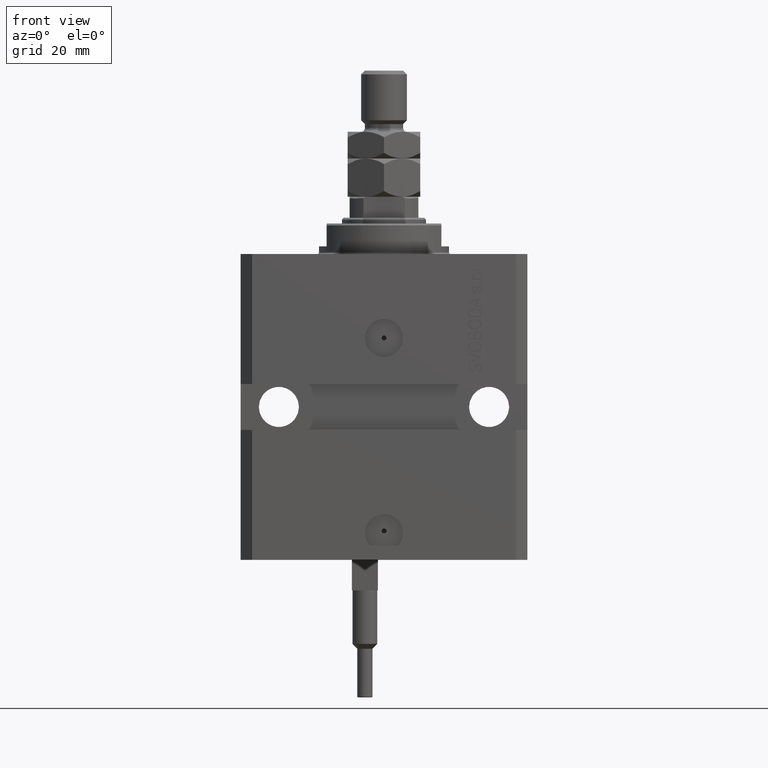
[diagram: clean part render]
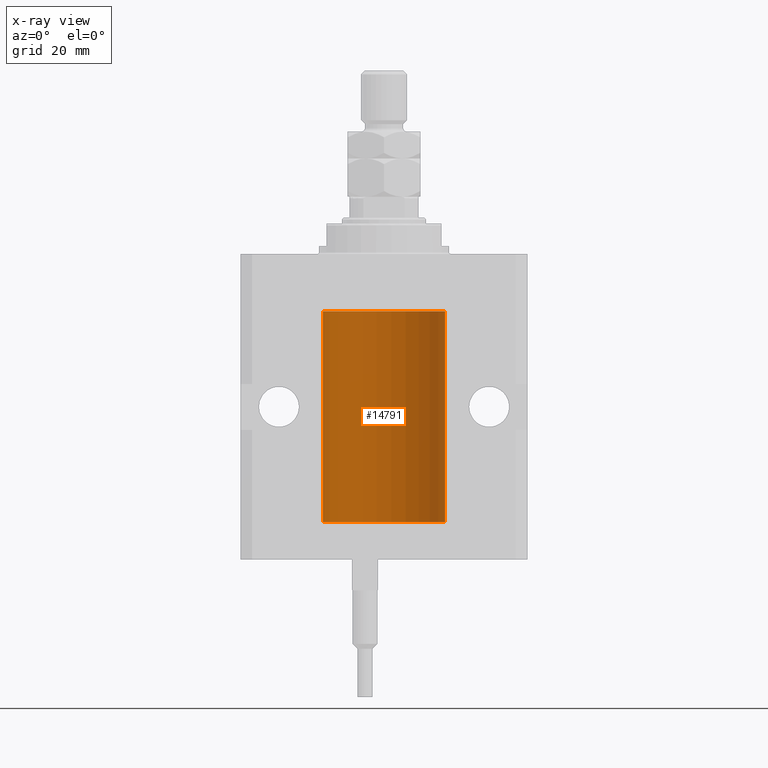
[diagram: x-ray — body ghosted, one internal face saturated and labeled with its STEP entity id]
A machine part, front view, then the same camera in x-ray: the body is ghosted and one INTERNAL B-rep face — a face not visible from any outside direction — is saturated and labeled: STEP entity #14791.
In plain terms, the highlighted cylindrical surface (partial cylindrical patch) has radius 16 mm, axis along (0, 0, 1).
Its self-contained STEP definition (entity closure, byte-faithful):
#267 = CARTESIAN_POINT ( 'NONE',  ( -15.99228023727724413, 0.5003781296993413674, -22.38347829554236057 ) ) ;
#402 = VECTOR ( 'NONE', #16337, 1000.000000000000000 ) ;
#584 = DIRECTION ( 'NONE',  ( -0.000000000000000000, -0.000000000000000000, 1.000000000000000000 ) ) ;
#1435 = CARTESIAN_POINT ( 'NONE',  ( -16.00000000000013145, 3.685127034031037939E-13, -22.62500000000341771 ) ) ;
#1508 = VERTEX_POINT ( 'NONE', #1435 ) ;
#1657 = EDGE_CURVE ( 'NONE', #27117, #44396, #21724, .T. ) ;
#3656 = EDGE_CURVE ( 'NONE', #16469, #8937, #36572, .T. ) ;
#3731 = EDGE_CURVE ( 'NONE', #27117, #37721, #8927, .T. ) ;
#4446 = CARTESIAN_POINT ( 'NONE',  ( -15.98779057735153586, 0.6249419637998054888, -67.83670145863507628 ) ) ;
#6251 = CARTESIAN_POINT ( 'NONE',  ( -16.00000000000000000, 1.959434878635765131E-15, -70.09999999999999432 ) ) ;
#7686 = CARTESIAN_POINT ( 'NONE',  ( -16.00000000000000000, -9.346608026143465119E-15, -67.37500000000000000 ) ) ;
#7812 = DIRECTION ( 'NONE',  ( 1.000000000000000000, 0.000000000000000000, 0.000000000000000000 ) ) ;
#8433 = CARTESIAN_POINT ( 'NONE',  ( -15.99548640841682712, 0.3843705577988820732, -67.50046628527007897 ) ) ;
#8627 = LINE ( 'NONE', #20070, #402 ) ;
#8628 = ORIENTED_EDGE ( 'NONE', *, *, #29279, .F. ) ;
#8798 = CYLINDRICAL_SURFACE ( 'NONE', #40331, 16.00000000000000000 ) ;
#8927 = LINE ( 'NONE', #16641, #31357 ) ;
#8937 = VERTEX_POINT ( 'NONE', #47743 ) ;
#9839 = DIRECTION ( 'NONE',  ( 0.000000000000000000, 0.000000000000000000, 1.000000000000000000 ) ) ;
#10026 = CARTESIAN_POINT ( 'NONE',  ( -16.00000000000000000, 1.643679961284177128E-16, -21.37499999999999645 ) ) ;
#10772 = CARTESIAN_POINT ( 'NONE',  ( -16.00000000000000000, 1.959434878635765131E-15, -70.09999999999999432 ) ) ;
#11268 = LINE ( 'NONE', #27424, #22191 ) ;
#12021 = EDGE_CURVE ( 'NONE', #25010, #1508, #37011, .T. ) ;
#13524 = CARTESIAN_POINT ( 'NONE',  ( -15.99548640841683067, 0.3843705577988847377, -21.50046628527008608 ) ) ;
#14791 = ADVANCED_FACE ( 'NONE', ( #26697 ), #8798, .F. ) ;
#15049 = CARTESIAN_POINT ( 'NONE',  ( -16.00000000000000000, -9.346608026143465119E-15, -67.37500000000000000 ) ) ;
#15897 = CARTESIAN_POINT ( 'NONE',  ( -15.99228023727723702, 0.5003781296993395911, -68.38347829554236057 ) ) ;
#16149 = CARTESIAN_POINT ( 'NONE',  ( -15.98844267028591126, 0.6088369347963314970, -68.16324735024328163 ) ) ;
#16337 = DIRECTION ( 'NONE',  ( -0.000000000000000000, -0.000000000000000000, 1.000000000000000000 ) ) ;
#16469 = VERTEX_POINT ( 'NONE', #15049 ) ;
#16641 = CARTESIAN_POINT ( 'NONE',  ( 16.00000000000000000, 0.000000000000000000, -70.09999999999999432 ) ) ;
#16971 = ORIENTED_EDGE ( 'NONE', *, *, #12021, .T. ) ;
#18579 = ORIENTED_EDGE ( 'NONE', *, *, #3656, .T. ) ;
#20070 = CARTESIAN_POINT ( 'NONE',  ( -16.00000000000000000, 1.959434878635765131E-15, -70.09999999999999432 ) ) ;
#21061 = CARTESIAN_POINT ( 'NONE',  ( 0.000000000000000000, 0.000000000000000000, -70.09999999999999432 ) ) ;
#21724 = CIRCLE ( 'NONE', #40793, 16.00000000000000000 ) ;
#21910 = CARTESIAN_POINT ( 'NONE',  ( -16.00000000000000000, 0.1631714642025800244, -22.62499999999985789 ) ) ;
#22191 = VECTOR ( 'NONE', #23185, 1000.000000000000000 ) ;
#22660 = CIRCLE ( 'NONE', #37759, 16.00000000000000000 ) ;
#23185 = DIRECTION ( 'NONE',  ( -0.000000000000000000, -0.000000000000000000, 1.000000000000000000 ) ) ;
#23346 = CARTESIAN_POINT ( 'NONE',  ( -15.99711699979840951, 0.3253759916140645525, -68.55856151623176231 ) ) ;
#24454 = ORIENTED_EDGE ( 'NONE', *, *, #32264, .F. ) ;
#24544 = CARTESIAN_POINT ( 'NONE',  ( -16.00000000000000000, 1.959434878635765131E-15, -15.00000000000000000 ) ) ;
#24951 = CARTESIAN_POINT ( 'NONE',  ( -15.98778717651346071, 0.6250289588122140971, -22.08131585687052478 ) ) ;
#25010 = VERTEX_POINT ( 'NONE', #37209 ) ;
#25440 = CARTESIAN_POINT ( 'NONE',  ( -15.99707730059171240, 0.3150375992092407373, -21.45402333202571654 ) ) ;
#25691 = DIRECTION ( 'NONE',  ( -0.000000000000000000, -0.000000000000000000, 1.000000000000000000 ) ) ;
#26697 = FACE_OUTER_BOUND ( 'NONE', #44944, .T. ) ;
#27085 = CARTESIAN_POINT ( 'NONE',  ( -15.99070653155268040, 0.5573233280232966491, -67.67348148680505915 ) ) ;
#27117 = VERTEX_POINT ( 'NONE', #30451 ) ;
#27424 = CARTESIAN_POINT ( 'NONE',  ( -16.00000000000000000, 1.959434878635765131E-15, -70.09999999999999432 ) ) ;
#27834 = DIRECTION ( 'NONE',  ( -0.000000000000000000, -0.000000000000000000, 1.000000000000000000 ) ) ;
#28694 = CARTESIAN_POINT ( 'NONE',  ( -15.99070653155267685, 0.5573233280232986475, -21.67348148680506625 ) ) ;
#28748 = CARTESIAN_POINT ( 'NONE',  ( 0.000000000000000000, 0.000000000000000000, -15.00000000000000000 ) ) ;
#29271 = DIRECTION ( 'NONE',  ( 0.000000000000000000, 0.000000000000000000, 1.000000000000000000 ) ) ;
#29279 = EDGE_CURVE ( 'NONE', #16469, #1508, #8627, .T. ) ;
#29309 = ORIENTED_EDGE ( 'NONE', *, *, #29371, .T. ) ;
#29371 = EDGE_CURVE ( 'NONE', #37721, #48481, #22660, .T. ) ;
#29735 = DIRECTION ( 'NONE',  ( 1.000000000000000000, 0.000000000000000000, 0.000000000000000000 ) ) ;
#30451 = CARTESIAN_POINT ( 'NONE',  ( 16.00000000000000000, 0.000000000000000000, -70.09999999999999432 ) ) ;
#30593 = CARTESIAN_POINT ( 'NONE',  ( -15.99707730059171240, 0.3150375992092334654, -67.45402333202571299 ) ) ;
#31340 = CARTESIAN_POINT ( 'NONE',  ( -15.98778717651346426, 0.6250289588122136530, -68.08131585687053189 ) ) ;
#31357 = VECTOR ( 'NONE', #27834, 1000.000000000000000 ) ;
#32264 = EDGE_CURVE ( 'NONE', #44396, #8937, #33667, .T. ) ;
#32682 = CARTESIAN_POINT ( 'NONE',  ( -15.99934216141748244, 0.1636497843296417787, -21.39126528029306229 ) ) ;
#32771 = DIRECTION ( 'NONE',  ( 1.000000000000000000, 0.000000000000000000, 0.000000000000000000 ) ) ;
#33626 = CARTESIAN_POINT ( 'NONE',  ( -15.99070426498503217, 0.5462220647145618058, -22.31460064614143590 ) ) ;
#33667 = LINE ( 'NONE', #10772, #37084 ) ;
#35056 = CARTESIAN_POINT ( 'NONE',  ( -15.99070426498502862, 0.5462220647145645813, -68.31460064614141459 ) ) ;
#36572 = B_SPLINE_CURVE_WITH_KNOTS ( 'NONE', 3,
 ( #7686, #42498, #42254, #30593, #8433, #27085, #4446, #31340, #16149, #35056, #15897, #23346, #38026, #46224 ),
 .UNSPECIFIED., .F., .F.,
 ( 4, 2, 2, 2, 2, 2, 4 ),
 ( 9.902737362640428303E-19, 0.0002442776652680895785, 0.0004885553305361781812, 0.0009771106610723552782, 0.001221388326340464752, 0.001465665991608574008, 0.001954221322144763465 ),
 .UNSPECIFIED. ) ;
#37011 = B_SPLINE_CURVE_WITH_KNOTS ( 'NONE', 3,
 ( #10026, #47577, #32682, #25440, #13524, #28694, #43858, #24951, #40122, #33626, #267, #40821, #21910, #49012 ),
 .UNSPECIFIED., .F., .F.,
 ( 4, 2, 2, 2, 2, 2, 4 ),
 ( 1.597328219370744179E-19, 0.0002442776652680942405, 0.0004885553305361882643, 0.0009771106610723839011, 0.001221388326340481665, 0.001465665991608579430, 0.001954221322144767369 ),
 .UNSPECIFIED. ) ;
#37084 = VECTOR ( 'NONE', #25691, 1000.000000000000000 ) ;
#37209 = CARTESIAN_POINT ( 'NONE',  ( -16.00000000000000000, 1.643679961284177128E-16, -21.37499999999999645 ) ) ;
#37721 = VERTEX_POINT ( 'NONE', #40104 ) ;
#37759 = AXIS2_PLACEMENT_3D ( 'NONE', #28748, #9839, #29735 ) ;
#38026 = CARTESIAN_POINT ( 'NONE',  ( -15.99999999999998934, 0.1631714642025807183, -68.62499999999984368 ) ) ;
#39776 = ORIENTED_EDGE ( 'NONE', *, *, #3731, .T. ) ;
#40104 = CARTESIAN_POINT ( 'NONE',  ( 16.00000000000000000, 0.000000000000000000, -15.00000000000000000 ) ) ;
#40122 = CARTESIAN_POINT ( 'NONE',  ( -15.98844267028591482, 0.6088369347963316081, -22.16324735024328518 ) ) ;
#40331 = AXIS2_PLACEMENT_3D ( 'NONE', #42123, #584, #7812 ) ;
#40793 = AXIS2_PLACEMENT_3D ( 'NONE', #21061, #29271, #32771 ) ;
#40821 = CARTESIAN_POINT ( 'NONE',  ( -15.99711699979842017, 0.3253759916140657737, -22.55856151623175521 ) ) ;
#42123 = CARTESIAN_POINT ( 'NONE',  ( 0.000000000000000000, 0.000000000000000000, -70.09999999999999432 ) ) ;
#42254 = CARTESIAN_POINT ( 'NONE',  ( -15.99934216141748244, 0.1636497843296345067, -67.39126528029308361 ) ) ;
#42415 = EDGE_CURVE ( 'NONE', #25010, #48481, #11268, .T. ) ;
#42498 = CARTESIAN_POINT ( 'NONE',  ( -16.00000000000000711, 0.08259886010189028405, -67.37500000000001421 ) ) ;
#42922 = ORIENTED_EDGE ( 'NONE', *, *, #1657, .F. ) ;
#42964 = ORIENTED_EDGE ( 'NONE', *, *, #42415, .F. ) ;
#43858 = CARTESIAN_POINT ( 'NONE',  ( -15.98779057735153941, 0.6249419637998100407, -21.83670145863507273 ) ) ;
#44396 = VERTEX_POINT ( 'NONE', #6251 ) ;
#44944 = EDGE_LOOP ( 'NONE', ( #24454, #42922, #39776, #29309, #42964, #16971, #8628, #18579 ) ) ;
#46224 = CARTESIAN_POINT ( 'NONE',  ( -16.00000000000013145, 3.685127046438747128E-13, -68.62500000000343903 ) ) ;
#47577 = CARTESIAN_POINT ( 'NONE',  ( -16.00000000000000711, 0.08259886010189904093, -21.37500000000000000 ) ) ;
#47743 = CARTESIAN_POINT ( 'NONE',  ( -16.00000000000013145, 3.685127046438747128E-13, -68.62500000000343903 ) ) ;
#48481 = VERTEX_POINT ( 'NONE', #24544 ) ;
#49012 = CARTESIAN_POINT ( 'NONE',  ( -16.00000000000013145, 3.685127034031037939E-13, -22.62500000000341771 ) ) ;